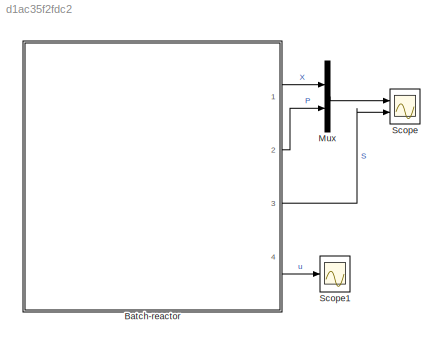
MODEL slx_d1ac35f2fdc2
KIND model
CONFIG AbsTol = 1e-4
CONFIG EnableMultiTasking = off
CONFIG FixedStep = auto
CONFIG MaxStep = auto
CONFIG MinStep = auto
CONFIG RelTol = 1e-4
CONFIG SampleTimeConstraint = Unconstrained
CONFIG SolverName = ode15s
CONFIG StartTime = 0.0
CONFIG StopTime = 24.1
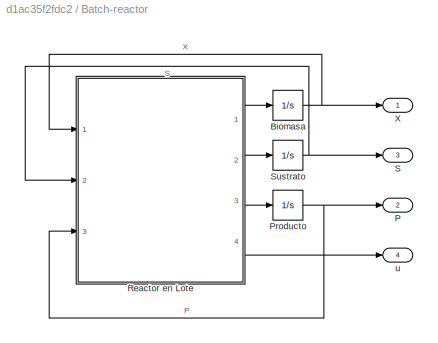
BLOCK [SubSystem] Batch-reactor
  Ports = [0, 4]
  RequestExecContextInheritance = off
BLOCK [Integrator] Batch-reactor/Biomasa
  InitialCondition = 1.0976
  Ports = [1, 1]
BLOCK [Outport] Batch-reactor/P
  Port = 2
BLOCK [Integrator] Batch-reactor/Producto
  Ports = [1, 1]
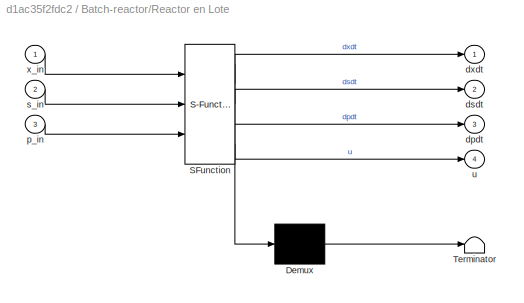
BLOCK [SubSystem] Batch-reactor/Reactor en Lote
  ErrorFcn = Stateflow.Translate.translate
  PermitHierarchicalResolution = ExplicitOnly
  Ports = [3, 4]
  RequestExecContextInheritance = off
  SFBlockType = MATLAB Function
  TreatAsAtomicUnit = on
BLOCK [Demux] Batch-reactor/Reactor en Lote/ Demux 
  Outputs = 1
  Ports = [1, 1]
BLOCK [S-Function] Batch-reactor/Reactor en Lote/ SFunction 
  EnableBusSupport = on
  FunctionName = sf_sfun
  PortCounts = [3 5]
  Ports = [3, 5]
  SFcnIsStateOwnerBlock = off
  SFunctionDeploymentMode = off
  Tag = Stateflow S-Function 2
BLOCK [Terminator] Batch-reactor/Reactor en Lote/ Terminator 
BLOCK [Outport] Batch-reactor/Reactor en Lote/dpdt
  Port = 3
BLOCK [Outport] Batch-reactor/Reactor en Lote/dsdt
  Port = 2
BLOCK [Outport] Batch-reactor/Reactor en Lote/dxdt
BLOCK [Inport] Batch-reactor/Reactor en Lote/p_in
  Port = 3
BLOCK [Inport] Batch-reactor/Reactor en Lote/s_in
  Port = 2
BLOCK [Outport] Batch-reactor/Reactor en Lote/u
  Port = 4
BLOCK [Inport] Batch-reactor/Reactor en Lote/x_in
BLOCK [Outport] Batch-reactor/S
  Port = 3
BLOCK [Integrator] Batch-reactor/Sustrato
  InitialCondition = 84.6948
  Ports = [1, 1]
BLOCK [Outport] Batch-reactor/X
BLOCK [Outport] Batch-reactor/u
  Port = 4
BLOCK [Mux] Mux
  DisplayOption = bar
  Inputs = 2
  Ports = [2, 1]
BLOCK [Scope] Scope
  Floating = off
  NumInputPorts = 2
  Ports = [2]
  ScopeSpecificationString = Simulink.scopes.TimeScopeBlockCfg('CurrentConfiguration', extmgr.ConfigurationSet(extmgr.Configuration('Core','General UI',true),extmgr.Configuration('Core','Source UI',true),extmgr.Configuration('Sources','WiredSimulink',true),extmgr.Configuration('Visuals','Time Domain',true,'SerializedDisplays',{struct('MinYLimReal','-10.58685','MaxYLimReal','95.28165','YLabelReal','','MinYLimMag','0.00000','Ma...<+1464ch>
BLOCK [Scope] Scope1
  Floating = off
  NumInputPorts = 1
  Ports = [1]
  ScopeSpecificationString = Simulink.scopes.TimeScopeBlockCfg('CurrentConfiguration', extmgr.ConfigurationSet(extmgr.Configuration('Core','General UI',true),extmgr.Configuration('Core','Source UI',true),extmgr.Configuration('Sources','WiredSimulink',true,'DataLoggingVariableName','ScopeData1'),extmgr.Configuration('Visuals','Time Domain',true,'SerializedDisplays',{struct('MinYLimReal','0.26619','MaxYLimReal','0.46619','YLabe...<+1482ch>
NET Batch-reactor/Biomasa:1 -> Batch-reactor/Reactor en Lote:1, Batch-reactor/X:1
NET Batch-reactor/Producto:1 -> Batch-reactor/P:1, Batch-reactor/Reactor en Lote:3
LINE Batch-reactor/Reactor en Lote:1 -> Batch-reactor/Biomasa:1
LINE Batch-reactor/Reactor en Lote:2 -> Batch-reactor/Sustrato:1
LINE Batch-reactor/Reactor en Lote:3 -> Batch-reactor/Producto:1
LINE Batch-reactor/Reactor en Lote:4 -> Batch-reactor/u:1
NET Batch-reactor/Sustrato:1 -> Batch-reactor/Reactor en Lote:2, Batch-reactor/S:1
LINE Batch-reactor:1 -> Mux:1
LINE Batch-reactor:2 -> Mux:2
LINE Batch-reactor:3 -> Scope:2
LINE Batch-reactor:4 -> Scope1:1
LINE Mux:1 -> Scope:1
note: NET lines group one-source signal fan-out (src -> all destinations, sorted); 1:1 wires keep LINE
CHART Batch-reactor/Reactor en Lote states=1 transitions=1
  STATE_LABEL 'eML_blk_kernel()'
  STATE_LABEL 'SCRIPT:\nfunction [dxdt, dsdt,dpdt,u] =Bio_batch(x_in,s_in,p_in)\n\n%Definir Parámetros\nOptim=[0.435603540944362,0.642245439116729,1.68836415295721,2.62700396764849,1.83188078300514,99.9928951768216,99.9948789027871];\n\numax=0.85*Optim(1);\nYxs=0.8*Optim(2);\nKs=0.08*Optim(3);\nalfa=0.05*Optim(4);\nbeta=0.002*Optim(5);\nSmax=90*Optim(6);\nms=0.00001*Optim(7);\n\n\n%Condiciones iniciales\nx=x_in;\ns=s_in;\np=p_in;...<+156ch>'
CHART  states=0 transitions=0
